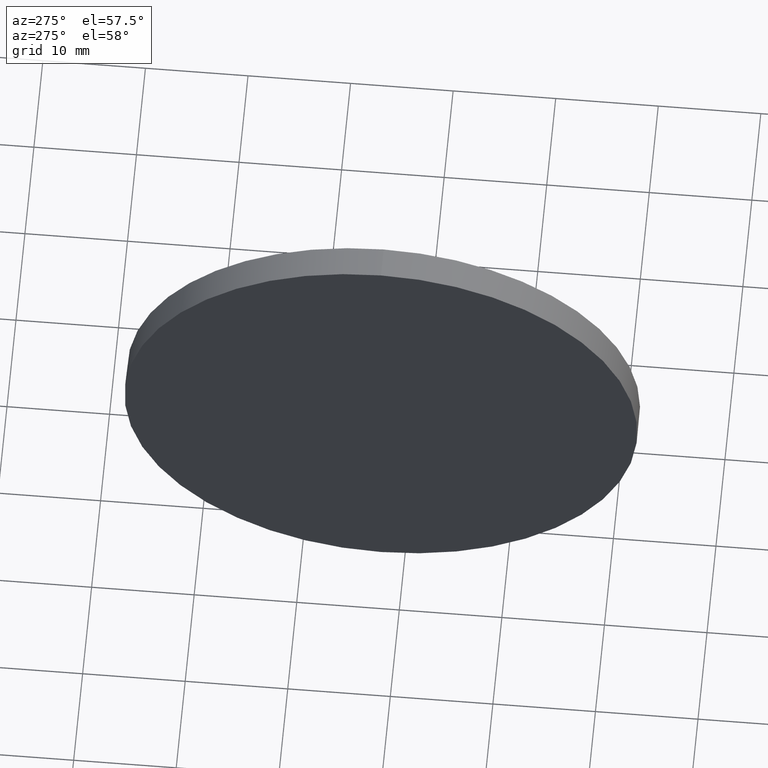
[diagram: clean part render]
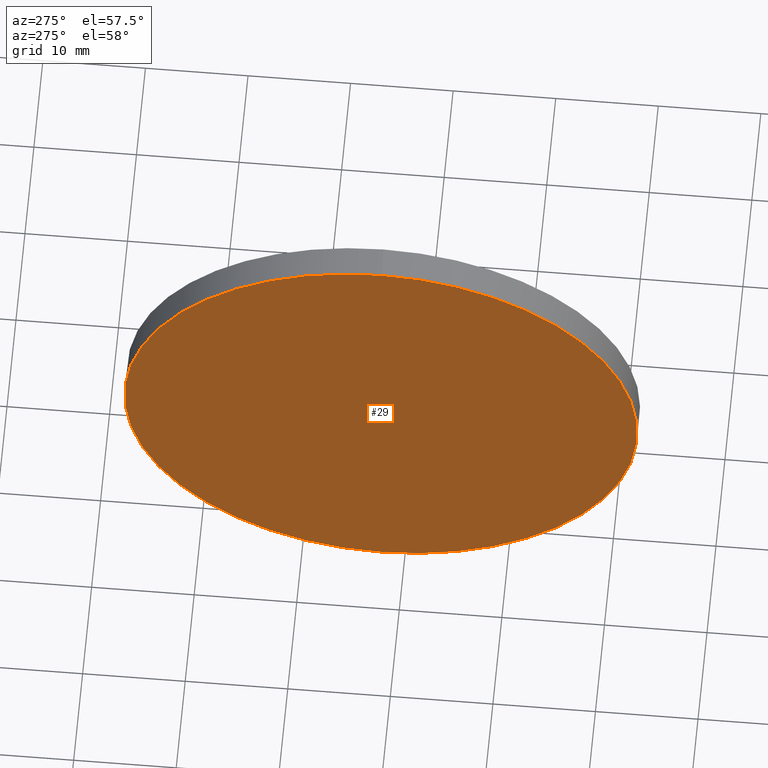
[diagram: same view with one face highlighted and labeled with its STEP entity id]
A machine part, auxiliary view. The second image highlights one B-rep face of the part: STEP entity #29.
In plain terms, the highlighted planar face has unit normal (1, 0, 0).
Its self-contained STEP definition (entity closure, byte-faithful):
#5 = DIRECTION ( 'NONE',  ( 0.0000000000000000000, 0.0000000000000000000, -1.000000000000000000 ) ) ;
#21 = DIRECTION ( 'NONE',  ( -1.000000000000000000, -0.0000000000000000000, -0.0000000000000000000 ) ) ;
#28 = ORIENTED_EDGE ( 'NONE', *, *, #121, .T. ) ;
#29 = ADVANCED_FACE ( 'NONE', ( #125 ), #146, .F. ) ;
#34 = AXIS2_PLACEMENT_3D ( 'NONE', #36, #117, #64 ) ;
#36 = CARTESIAN_POINT ( 'NONE',  ( 415.8113751889766300, 102.3011867309653600, 0.0000000000000000000 ) ) ;
#37 = VERTEX_POINT ( 'NONE', #84 ) ;
#45 = CARTESIAN_POINT ( 'NONE',  ( 415.8113751889766300, 102.3011867309653600, 24.99999999999999300 ) ) ;
#59 = CARTESIAN_POINT ( 'NONE',  ( 415.8113751889766300, 102.3011867309653600, 0.0000000000000000000 ) ) ;
#64 = DIRECTION ( 'NONE',  ( 0.0000000000000000000, 0.0000000000000000000, 1.000000000000000000 ) ) ;
#65 = VERTEX_POINT ( 'NONE', #45 ) ;
#80 = CIRCLE ( 'NONE', #34, 24.99999999999999300 ) ;
#84 = CARTESIAN_POINT ( 'NONE',  ( 415.8113751889766300, 102.3011867309653600, -24.99999999999999300 ) ) ;
#86 = AXIS2_PLACEMENT_3D ( 'NONE', #181, #21, #90 ) ;
#87 = EDGE_LOOP ( 'NONE', ( #28, #105 ) ) ;
#90 = DIRECTION ( 'NONE',  ( 0.0000000000000000000, 0.0000000000000000000, 1.000000000000000000 ) ) ;
#100 = DIRECTION ( 'NONE',  ( 1.000000000000000000, 0.0000000000000000000, 0.0000000000000000000 ) ) ;
#105 = ORIENTED_EDGE ( 'NONE', *, *, #169, .T. ) ;
#117 = DIRECTION ( 'NONE',  ( -1.000000000000000000, -0.0000000000000000000, -0.0000000000000000000 ) ) ;
#121 = EDGE_CURVE ( 'NONE', #65, #37, #155, .T. ) ;
#125 = FACE_OUTER_BOUND ( 'NONE', #87, .T. ) ;
#146 = PLANE ( 'NONE',  #176 ) ;
#155 = CIRCLE ( 'NONE', #86, 24.99999999999999300 ) ;
#169 = EDGE_CURVE ( 'NONE', #37, #65, #80, .T. ) ;
#176 = AXIS2_PLACEMENT_3D ( 'NONE', #59, #100, #5 ) ;
#181 = CARTESIAN_POINT ( 'NONE',  ( 415.8113751889766300, 102.3011867309653600, 0.0000000000000000000 ) ) ;